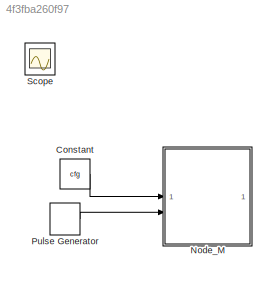
MODEL slx_4f3fba260f97
KIND model
CONFIG AbsTol = auto
CONFIG EnableMultiTasking = off
CONFIG FixedStep = 0.5e-3
CONFIG MaxStep = auto
CONFIG MinStep = auto
CONFIG RelTol = 1e-3
CONFIG SampleTimeConstraint = Unconstrained
CONFIG SolverName = ode1
CONFIG StartTime = 0.0
CONFIG StopTime = 10.0
WORKSPACE source: mxarray member
WORKSPACE cfg: object (value not decoded)
BLOCK [Constant] Constant
  OutDataTypeStr = Bus: Config_M
  SampleTime = -1
  Value = cfg
BLOCK [ModelReference] Node_M
  ModelNameDialog = Node_M
  ModelReferenceVersion = 1.87
BLOCK [DiscretePulseGenerator] Pulse Generator
  Amplitude = 50
  Period = 1
  PulseType = Time based
  PulseWidth = 5
BLOCK [Scope] Scope
  Floating = off
  IOType = viewer
  NumInputPorts = 1
  ScopeSpecificationString = Simulink.scopes.TimeScopeBlockCfg('CurrentConfiguration', extmgr.ConfigurationSet(extmgr.Configuration('Core','General UI',true),extmgr.Configuration('Core','Source UI',true),extmgr.Configuration('Sources','WiredSimulink',true),extmgr.Configuration('Visuals','Time Domain',true,'SerializedDisplays',{struct('MinYLimReal','-15.25','MaxYLimReal','137.25','YLabelReal','','MinYLimMag','0.00000','MaxYLim...<+1458ch>
LINE Constant:1 -> Node_M:1
LINE Pulse Generator:1 -> Node_M:2
